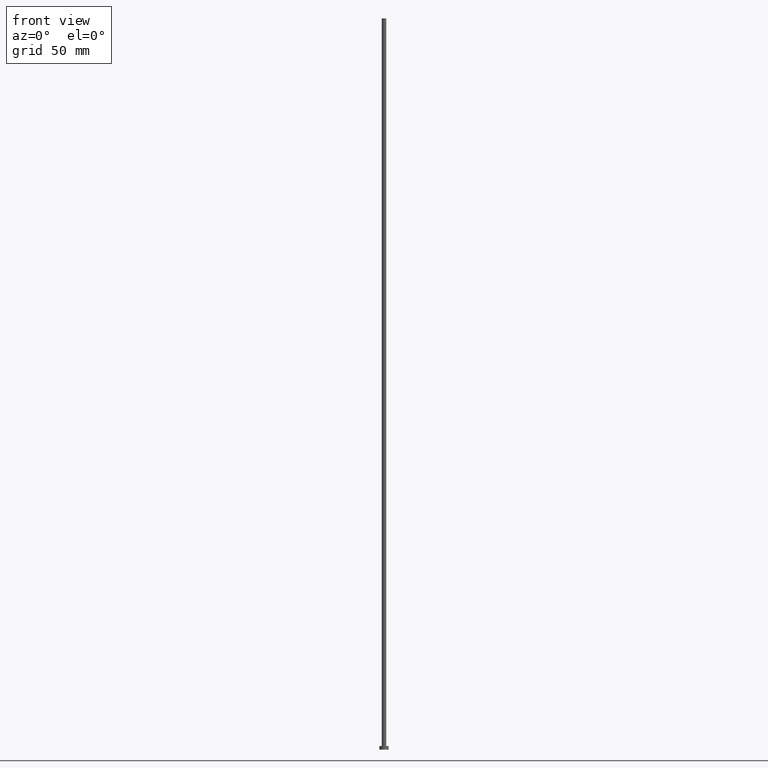
[diagram: clean part render]
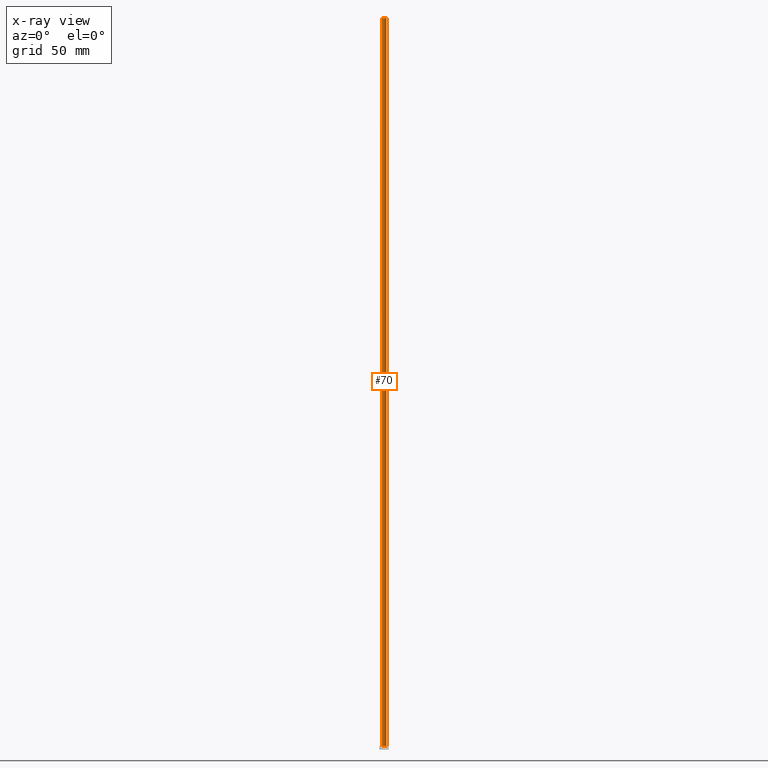
[diagram: x-ray — body ghosted, one internal face saturated and labeled with its STEP entity id]
A machine part, front view, then the same camera in x-ray: the body is ghosted and one INTERNAL B-rep face — a face not visible from any outside direction — is saturated and labeled: STEP entity #70.
In plain terms, the highlighted cylindrical surface (edge-blend (fillet) strip) has radius 1.25 mm, axis along (-0, -0, -1).
Its self-contained STEP definition (entity closure, byte-faithful):
#2 = VERTEX_POINT ( 'NONE', #212 ) ;
#6 = CARTESIAN_POINT ( 'NONE',  ( 0.000000000000000000, 0.000000000000000000, 400.0000000000000000 ) ) ;
#8 = VERTEX_POINT ( 'NONE', #213 ) ;
#16 = ORIENTED_EDGE ( 'NONE', *, *, #196, .F. ) ;
#19 = VECTOR ( 'NONE', #145, 1000.000000000000000 ) ;
#25 = AXIS2_PLACEMENT_3D ( 'NONE', #6, #168, #247 ) ;
#38 = CARTESIAN_POINT ( 'NONE',  ( 0.000000000000000000, 0.000000000000000000, 2.000000000000000000 ) ) ;
#41 = EDGE_CURVE ( 'NONE', #2, #8, #146, .T. ) ;
#43 = ORIENTED_EDGE ( 'NONE', *, *, #53, .T. ) ;
#53 = EDGE_CURVE ( 'NONE', #232, #8, #119, .T. ) ;
#58 = DIRECTION ( 'NONE',  ( 1.000000000000000000, 0.000000000000000000, 0.000000000000000000 ) ) ;
#59 = AXIS2_PLACEMENT_3D ( 'NONE', #161, #244, #77 ) ;
#65 = ORIENTED_EDGE ( 'NONE', *, *, #101, .T. ) ;
#70 = ADVANCED_FACE ( 'NONE', ( #226 ), #128, .T. ) ;
#77 = DIRECTION ( 'NONE',  ( 1.000000000000000000, 0.000000000000000000, 0.000000000000000000 ) ) ;
#80 = CIRCLE ( 'NONE', #59, 1.250000000000000000 ) ;
#92 = AXIS2_PLACEMENT_3D ( 'NONE', #38, #164, #58 ) ;
#101 = EDGE_CURVE ( 'NONE', #142, #232, #217, .T. ) ;
#103 = CARTESIAN_POINT ( 'NONE',  ( -1.250000000000000000, 0.000000000000000000, 400.0000000000000000 ) ) ;
#113 = CARTESIAN_POINT ( 'NONE',  ( 1.250000000000000000, 1.530808498934191571E-16, 400.0000000000000000 ) ) ;
#119 = CIRCLE ( 'NONE', #92, 1.250000000000000000 ) ;
#128 = CYLINDRICAL_SURFACE ( 'NONE', #25, 1.250000000000000000 ) ;
#142 = VERTEX_POINT ( 'NONE', #234 ) ;
#145 = DIRECTION ( 'NONE',  ( -0.000000000000000000, -0.000000000000000000, -1.000000000000000000 ) ) ;
#146 = LINE ( 'NONE', #103, #19 ) ;
#161 = CARTESIAN_POINT ( 'NONE',  ( 0.000000000000000000, 0.000000000000000000, 400.0000000000000000 ) ) ;
#164 = DIRECTION ( 'NONE',  ( 0.000000000000000000, 0.000000000000000000, 1.000000000000000000 ) ) ;
#168 = DIRECTION ( 'NONE',  ( -0.000000000000000000, -0.000000000000000000, -1.000000000000000000 ) ) ;
#177 = DIRECTION ( 'NONE',  ( -0.000000000000000000, -0.000000000000000000, -1.000000000000000000 ) ) ;
#181 = ORIENTED_EDGE ( 'NONE', *, *, #41, .F. ) ;
#196 = EDGE_CURVE ( 'NONE', #142, #2, #80, .T. ) ;
#211 = VECTOR ( 'NONE', #177, 1000.000000000000000 ) ;
#212 = CARTESIAN_POINT ( 'NONE',  ( -1.250000000000000000, 0.000000000000000000, 400.0000000000000000 ) ) ;
#213 = CARTESIAN_POINT ( 'NONE',  ( -1.250000000000000000, 0.000000000000000000, 2.000000000000000000 ) ) ;
#217 = LINE ( 'NONE', #113, #211 ) ;
#221 = EDGE_LOOP ( 'NONE', ( #16, #65, #43, #181 ) ) ;
#226 = FACE_OUTER_BOUND ( 'NONE', #221, .T. ) ;
#232 = VERTEX_POINT ( 'NONE', #246 ) ;
#234 = CARTESIAN_POINT ( 'NONE',  ( 1.250000000000000000, 1.530808498934191571E-16, 400.0000000000000000 ) ) ;
#244 = DIRECTION ( 'NONE',  ( 0.000000000000000000, 0.000000000000000000, 1.000000000000000000 ) ) ;
#246 = CARTESIAN_POINT ( 'NONE',  ( 1.250000000000000000, 1.530808498934191571E-16, 2.000000000000000000 ) ) ;
#247 = DIRECTION ( 'NONE',  ( -1.000000000000000000, 0.000000000000000000, 0.000000000000000000 ) ) ;